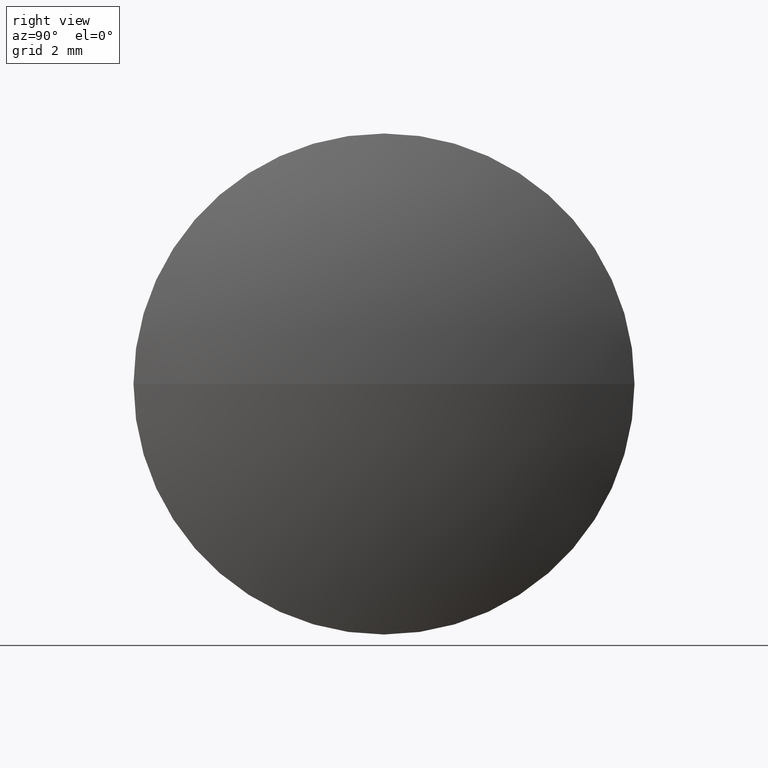
[diagram: clean part render]
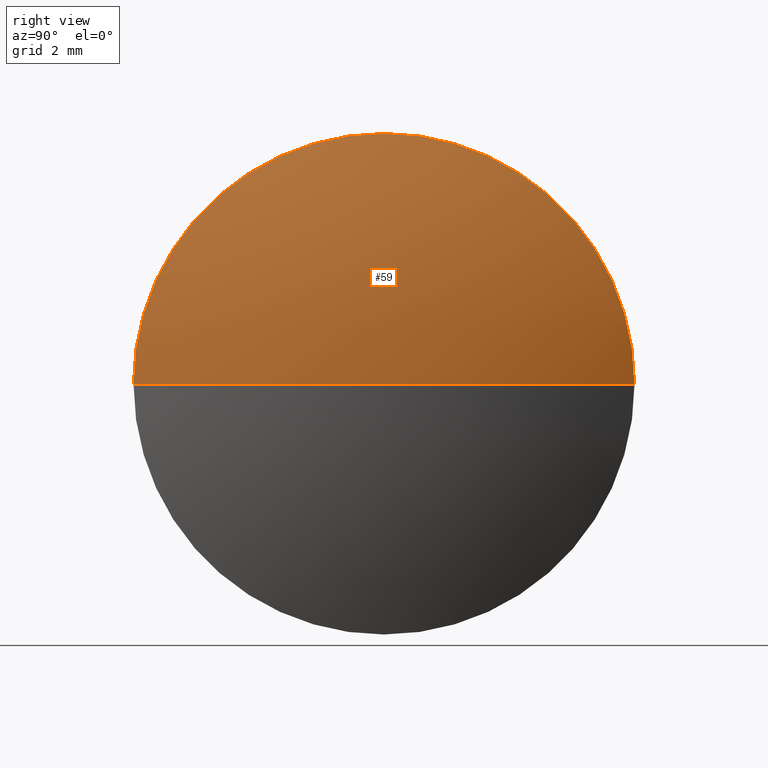
[diagram: same view with one face highlighted and labeled with its STEP entity id]
A machine part, right view. The second image highlights one B-rep face of the part: STEP entity #59.
In plain terms, the highlighted spherical surface has radius 16.1594 mm.
Its self-contained STEP definition (entity closure, byte-faithful):
#3 = ORIENTED_EDGE ( 'NONE', *, *, #202, .F. ) ;
#15 = DIRECTION ( 'NONE',  ( -1.000000000000000000, 0.0000000000000000000, 0.0000000000000000000 ) ) ;
#25 = CARTESIAN_POINT ( 'NONE',  ( 29.36967823465456800, 24.30805651159240100, 0.0000000000000000000 ) ) ;
#31 = ORIENTED_EDGE ( 'NONE', *, *, #337, .F. ) ;
#32 = AXIS2_PLACEMENT_3D ( 'NONE', #25, #338, #254 ) ;
#34 = CIRCLE ( 'NONE', #73, 16.15938865267670000 ) ;
#51 = EDGE_CURVE ( 'NONE', #212, #288, #121, .T. ) ;
#54 = DIRECTION ( 'NONE',  ( 0.0000000000000000000, 0.0000000000000000000, -1.000000000000000000 ) ) ;
#59 = ADVANCED_FACE ( 'NONE', ( #96 ), #174, .T. ) ;
#60 = EDGE_LOOP ( 'NONE', ( #218, #242, #31, #3 ) ) ;
#61 = CARTESIAN_POINT ( 'NONE',  ( 44.22913117304555200, 30.65805651159239500, 7.776507174585687200E-016 ) ) ;
#63 = CARTESIAN_POINT ( 'NONE',  ( 44.22913117304555200, 24.30805651159239000, 0.0000000000000000000 ) ) ;
#73 = AXIS2_PLACEMENT_3D ( 'NONE', #319, #205, #344 ) ;
#91 = CARTESIAN_POINT ( 'NONE',  ( 44.22913117304555200, 24.30805651159239000, 0.0000000000000000000 ) ) ;
#96 = FACE_OUTER_BOUND ( 'NONE', #60, .T. ) ;
#121 = CIRCLE ( 'NONE', #123, 16.15938865267670000 ) ;
#123 = AXIS2_PLACEMENT_3D ( 'NONE', #125, #54, #15 ) ;
#125 = CARTESIAN_POINT ( 'NONE',  ( 29.36967823465456800, 24.30805651159240100, 0.0000000000000000000 ) ) ;
#127 = AXIS2_PLACEMENT_3D ( 'NONE', #63, #238, #323 ) ;
#133 = CARTESIAN_POINT ( 'NONE',  ( 45.52906688733126800, 24.30805651159240100, 0.0000000000000000000 ) ) ;
#134 = CIRCLE ( 'NONE', #262, 6.349999999999997900 ) ;
#174 = SPHERICAL_SURFACE ( 'NONE', #32, 16.15938865267670000 ) ;
#183 = VERTEX_POINT ( 'NONE', #61 ) ;
#202 = EDGE_CURVE ( 'NONE', #288, #294, #134, .T. ) ;
#205 = DIRECTION ( 'NONE',  ( 0.0000000000000000000, -1.224646799147353200E-016, 1.000000000000000000 ) ) ;
#208 = CARTESIAN_POINT ( 'NONE',  ( 44.22913117304555200, 24.30805651159239000, 6.349999999999997900 ) ) ;
#212 = VERTEX_POINT ( 'NONE', #133 ) ;
#218 = ORIENTED_EDGE ( 'NONE', *, *, #51, .F. ) ;
#222 = CIRCLE ( 'NONE', #127, 6.349999999999997900 ) ;
#238 = DIRECTION ( 'NONE',  ( -1.000000000000000000, -0.0000000000000000000, -0.0000000000000000000 ) ) ;
#242 = ORIENTED_EDGE ( 'NONE', *, *, #270, .T. ) ;
#254 = DIRECTION ( 'NONE',  ( 0.0000000000000000000, -1.000000000000000000, 0.0000000000000000000 ) ) ;
#262 = AXIS2_PLACEMENT_3D ( 'NONE', #91, #287, #317 ) ;
#270 = EDGE_CURVE ( 'NONE', #212, #183, #34, .T. ) ;
#287 = DIRECTION ( 'NONE',  ( -1.000000000000000000, -0.0000000000000000000, -0.0000000000000000000 ) ) ;
#288 = VERTEX_POINT ( 'NONE', #291 ) ;
#291 = CARTESIAN_POINT ( 'NONE',  ( 44.22913117304555200, 17.95805651159239600, 0.0000000000000000000 ) ) ;
#294 = VERTEX_POINT ( 'NONE', #208 ) ;
#317 = DIRECTION ( 'NONE',  ( 0.0000000000000000000, 0.0000000000000000000, 1.000000000000000000 ) ) ;
#319 = CARTESIAN_POINT ( 'NONE',  ( 29.36967823465456800, 24.30805651159240100, 0.0000000000000000000 ) ) ;
#323 = DIRECTION ( 'NONE',  ( 0.0000000000000000000, 0.0000000000000000000, 1.000000000000000000 ) ) ;
#337 = EDGE_CURVE ( 'NONE', #294, #183, #222, .T. ) ;
#338 = DIRECTION ( 'NONE',  ( 0.0000000000000000000, 0.0000000000000000000, 1.000000000000000000 ) ) ;
#344 = DIRECTION ( 'NONE',  ( 0.0000000000000000000, -1.000000000000000000, -1.224646799147353200E-016 ) ) ;